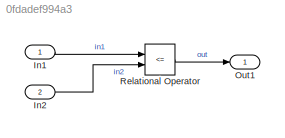
MODEL slx_0fdadef994a3
KIND model
BLOCK [Inport] In1
  IconDisplay = Port number
BLOCK [Inport] In2
  IconDisplay = Port number
  Port = 2
BLOCK [Outport] Out1
  IconDisplay = Port number
BLOCK [RelationalOperator] Relational Operator
  InputSameDT = off
  Operator = <=
  OutDataTypeStr = boolean
  Ports = [2, 1]
LINE In1:1 -> Relational Operator:1
LINE In2:1 -> Relational Operator:2
LINE Relational Operator:1 -> Out1:1
